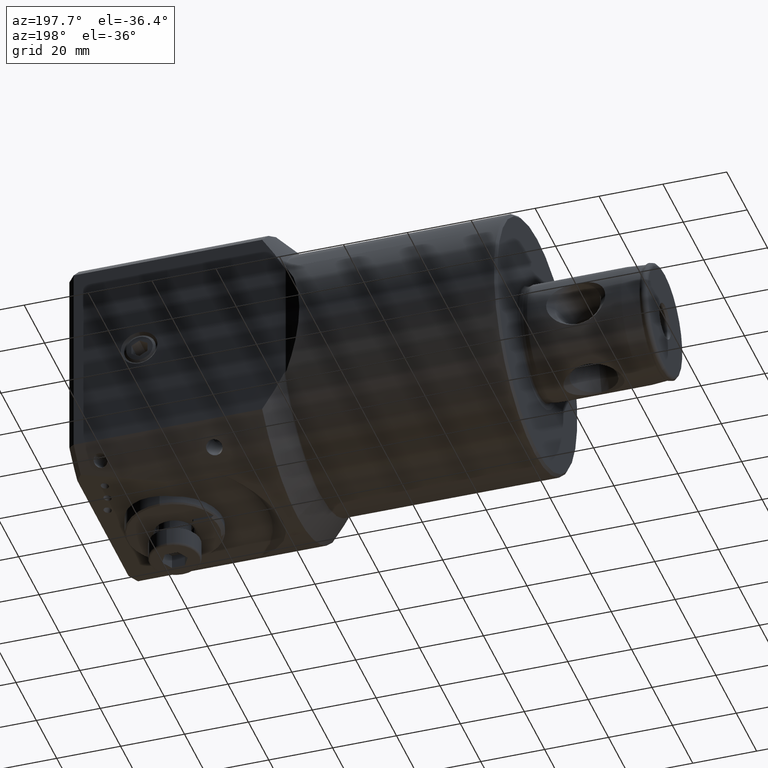
[diagram: clean part render]
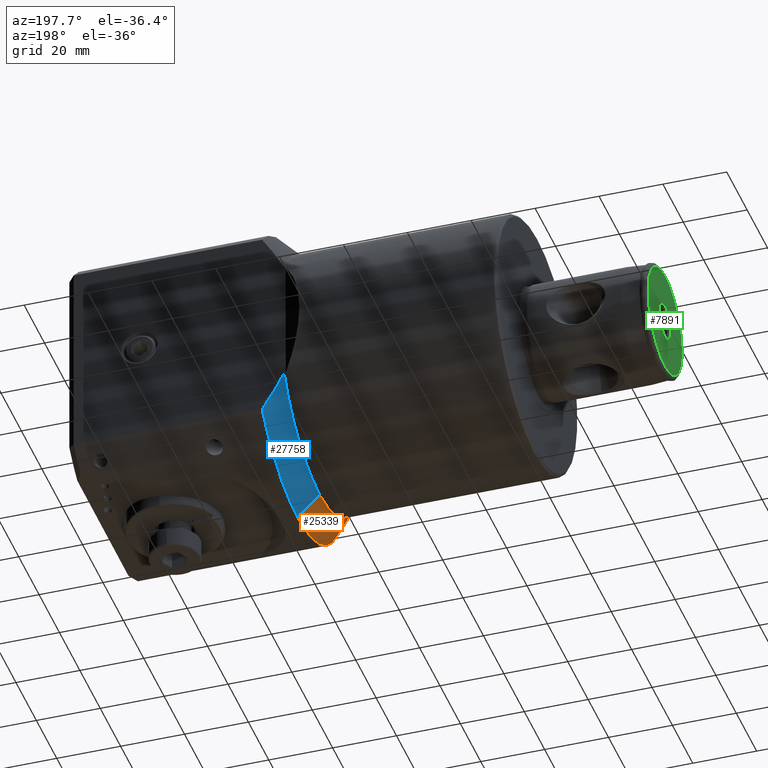
[diagram: same view with three faces highlighted in distinct colors, each labeled with its STEP entity id]
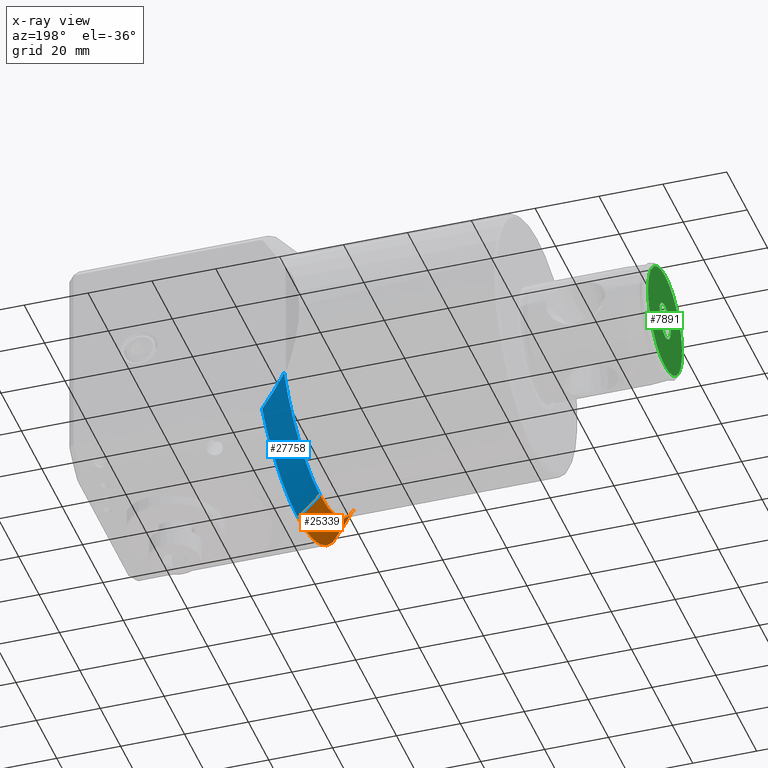
[diagram: x-ray of the same camera — body ghosted, the three highlighted faces saturated]
A machine part, auxiliary view with three faces highlighted in distinct colors.
The next image is the same camera in x-ray (body ghosted, the three faces saturated) — at least one of them is partly hidden behind the body in this view.
Their STEP definitions:

[orange] entity #25339 — the highlighted conical surface has half-angle 45 deg.
#73 = CARTESIAN_POINT ( 'NONE',  ( -67.88284271247461300, -34.00000000000001400, -21.29286990595801400 ) ) ;
#179 = CARTESIAN_POINT ( 'NONE',  ( -61.00000000000000000, -33.99999999999999300, -32.44996147917586900 ) ) ;
#2545 = CARTESIAN_POINT ( 'NONE',  ( -67.88284271247461300, -3.469446951953614200E-014, 0.0000000000000000000 ) ) ;
#2910 = B_SPLINE_CURVE_WITH_KNOTS ( 'NONE', 3,
 ( #23325, #31488, #20221, #34225, #12112, #25575 ),
 .UNSPECIFIED., .F., .F.,
 ( 4, 2, 4 ),
 ( 0.08657966509712980400, 0.09315358088222268400, 0.09972749666731556300 ),
 .UNSPECIFIED. ) ;
#3119 = DIRECTION ( 'NONE',  ( 0.0000000000000000000, 0.0000000000000000000, -1.000000000000000000 ) ) ;
#3781 = EDGE_LOOP ( 'NONE', ( #23312, #13274, #31710, #5219 ) ) ;
#3896 = LINE ( 'NONE', #5679, #15732 ) ;
#5219 = ORIENTED_EDGE ( 'NONE', *, *, #9718, .T. ) ;
#5342 = EDGE_CURVE ( 'NONE', #20432, #18560, #16449, .T. ) ;
#5376 = DIRECTION ( 'NONE',  ( 0.0000000000000000000, 0.0000000000000000000, 1.000000000000000000 ) ) ;
#5679 = CARTESIAN_POINT ( 'NONE',  ( -61.00000000000000000, -3.469446951953614200E-014, -47.00000000000000700 ) ) ;
#5923 = VERTEX_POINT ( 'NONE', #26107 ) ;
#6023 = VERTEX_POINT ( 'NONE', #73 ) ;
#8655 = DIRECTION ( 'NONE',  ( 1.000000000000000000, 0.0000000000000000000, 0.0000000000000000000 ) ) ;
#9057 = AXIS2_PLACEMENT_3D ( 'NONE', #34005, #22996, #23108 ) ;
#9718 = EDGE_CURVE ( 'NONE', #18560, #6023, #2910, .T. ) ;
#12112 = CARTESIAN_POINT ( 'NONE',  ( -66.85235979607995200, -34.00000000000001400, -23.23436700905849200 ) ) ;
#12622 = CIRCLE ( 'NONE', #31091, 40.11715728752538700 ) ;
#13274 = ORIENTED_EDGE ( 'NONE', *, *, #28168, .T. ) ;
#14710 = FACE_OUTER_BOUND ( 'NONE', #3781, .T. ) ;
#15732 = VECTOR ( 'NONE', #29587, 999.9999999999998900 ) ;
#16449 = CIRCLE ( 'NONE', #9057, 47.00000000000000700 ) ;
#18358 = CARTESIAN_POINT ( 'NONE',  ( -61.00000000000000000, 2.465190328815661900E-029, -47.00000000000000700 ) ) ;
#18560 = VERTEX_POINT ( 'NONE', #179 ) ;
#20221 = CARTESIAN_POINT ( 'NONE',  ( -63.44265615506694200, -34.00000000000002100, -28.83520262604908900 ) ) ;
#20432 = VERTEX_POINT ( 'NONE', #18358 ) ;
#21901 = CARTESIAN_POINT ( 'NONE',  ( -61.00000000000000000, -3.469446951953614200E-014, 0.0000000000000000000 ) ) ;
#22996 = DIRECTION ( 'NONE',  ( -1.000000000000000000, -0.0000000000000000000, -0.0000000000000000000 ) ) ;
#23108 = DIRECTION ( 'NONE',  ( 0.0000000000000000000, 0.0000000000000000000, 1.000000000000000000 ) ) ;
#23312 = ORIENTED_EDGE ( 'NONE', *, *, #25208, .F. ) ;
#23325 = CARTESIAN_POINT ( 'NONE',  ( -61.00000000000000000, -33.99999999999999300, -32.44996147917586900 ) ) ;
#25208 = EDGE_CURVE ( 'NONE', #5923, #6023, #12622, .T. ) ;
#25339 = ADVANCED_FACE ( 'NONE', ( #14710 ), #33361, .T. ) ;
#25575 = CARTESIAN_POINT ( 'NONE',  ( -67.88284271247461300, -34.00000000000001400, -21.29286990595801400 ) ) ;
#26107 = CARTESIAN_POINT ( 'NONE',  ( -67.88284271247461300, -3.469446951953614200E-014, -40.11715728752538700 ) ) ;
#26987 = DIRECTION ( 'NONE',  ( -1.000000000000000000, -0.0000000000000000000, -0.0000000000000000000 ) ) ;
#28168 = EDGE_CURVE ( 'NONE', #5923, #20432, #3896, .T. ) ;
#29587 = DIRECTION ( 'NONE',  ( 0.7071067811865468000, 0.0000000000000000000, -0.7071067811865483500 ) ) ;
#31091 = AXIS2_PLACEMENT_3D ( 'NONE', #2545, #26987, #5376 ) ;
#31488 = CARTESIAN_POINT ( 'NONE',  ( -62.23919189052482900, -34.00000000000001400, -30.65513596321831000 ) ) ;
#31561 = AXIS2_PLACEMENT_3D ( 'NONE', #21901, #8655, #3119 ) ;
#31710 = ORIENTED_EDGE ( 'NONE', *, *, #5342, .T. ) ;
#33361 = CONICAL_SURFACE ( 'NONE', #31561, 47.00000000000000700, 0.7853981633974492800 ) ;
#34005 = CARTESIAN_POINT ( 'NONE',  ( -61.00000000000000000, -3.469446951953614200E-014, 0.0000000000000000000 ) ) ;
#34225 = CARTESIAN_POINT ( 'NONE',  ( -65.74909191599658700, -34.00000000000000700, -25.12471400618554200 ) ) ;

[blue] entity #27758 — the highlighted conical surface has half-angle 45 deg.
#290 = CARTESIAN_POINT ( 'NONE',  ( -61.00000000000000000, -3.469446951953614200E-014, 0.0000000000000000000 ) ) ;
#792 = AXIS2_PLACEMENT_3D ( 'NONE', #290, #21597, #24773 ) ;
#1356 = CARTESIAN_POINT ( 'NONE',  ( -61.00000000000000000, -3.469446951953614200E-014, 0.0000000000000000000 ) ) ;
#1424 = AXIS2_PLACEMENT_3D ( 'NONE', #19936, #19700, #25282 ) ;
#1968 = EDGE_CURVE ( 'NONE', #26296, #20432, #21701, .T. ) ;
#2223 = FACE_OUTER_BOUND ( 'NONE', #32283, .T. ) ;
#3240 = CARTESIAN_POINT ( 'NONE',  ( -61.63042682887995500, 35.00000000000000000, -30.42420243906337500 ) ) ;
#3896 = LINE ( 'NONE', #5679, #15732 ) ;
#4251 = ORIENTED_EDGE ( 'NONE', *, *, #1968, .T. ) ;
#5285 = ORIENTED_EDGE ( 'NONE', *, *, #34837, .F. ) ;
#5679 = CARTESIAN_POINT ( 'NONE',  ( -61.00000000000000000, -3.469446951953614200E-014, -47.00000000000000700 ) ) ;
#5923 = VERTEX_POINT ( 'NONE', #26107 ) ;
#10035 = EDGE_CURVE ( 'NONE', #28991, #26296, #14016, .T. ) ;
#13766 = CARTESIAN_POINT ( 'NONE',  ( -61.00000000000000000, 35.00000000000000000, -31.36877428271621300 ) ) ;
#13769 = CIRCLE ( 'NONE', #1424, 40.11715728752538700 ) ;
#13884 = CARTESIAN_POINT ( 'NONE',  ( -67.88284271247461300, 35.00000000000000000, -19.60577233449497900 ) ) ;
#14016 = B_SPLINE_CURVE_WITH_KNOTS ( 'NONE', 3,
 ( #13884, #30194, #22270, #19068, #32914, #21792, #3240, #13766 ),
 .UNSPECIFIED., .F., .F.,
 ( 4, 2, 2, 4 ),
 ( 0.1412856817602788100, 0.1480492998065413000, 0.1514311088296725300, 0.1548129178528037900 ),
 .UNSPECIFIED. ) ;
#14905 = CONICAL_SURFACE ( 'NONE', #792, 47.00000000000000700, 0.7853981633974492800 ) ;
#15732 = VECTOR ( 'NONE', #29587, 999.9999999999998900 ) ;
#15822 = CARTESIAN_POINT ( 'NONE',  ( -61.00000000000000000, 35.00000000000000000, -31.36877428271621300 ) ) ;
#17424 = CARTESIAN_POINT ( 'NONE',  ( -67.88284271247461300, 35.00000000000000000, -19.60577233449497900 ) ) ;
#18358 = CARTESIAN_POINT ( 'NONE',  ( -61.00000000000000000, 2.465190328815661900E-029, -47.00000000000000700 ) ) ;
#19068 = CARTESIAN_POINT ( 'NONE',  ( -64.06347632001011000, 35.00000000000000700, -26.57148401151384900 ) ) ;
#19700 = DIRECTION ( 'NONE',  ( -1.000000000000000000, -0.0000000000000000000, -0.0000000000000000000 ) ) ;
#19936 = CARTESIAN_POINT ( 'NONE',  ( -67.88284271247461300, -3.469446951953614200E-014, 0.0000000000000000000 ) ) ;
#20230 = DIRECTION ( 'NONE',  ( -1.000000000000000000, -0.0000000000000000000, -0.0000000000000000000 ) ) ;
#20432 = VERTEX_POINT ( 'NONE', #18358 ) ;
#21597 = DIRECTION ( 'NONE',  ( 1.000000000000000000, 0.0000000000000000000, 0.0000000000000000000 ) ) ;
#21701 = CIRCLE ( 'NONE', #25533, 47.00000000000000700 ) ;
#21792 = CARTESIAN_POINT ( 'NONE',  ( -62.25079289778310000, 35.00000000000000700, -29.47113395626982100 ) ) ;
#22270 = CARTESIAN_POINT ( 'NONE',  ( -65.79854406642870400, 35.00000000000000000, -23.63187425661498500 ) ) ;
#24773 = DIRECTION ( 'NONE',  ( 0.0000000000000000000, 0.0000000000000000000, -1.000000000000000000 ) ) ;
#25282 = DIRECTION ( 'NONE',  ( 0.0000000000000000000, 0.0000000000000000000, 1.000000000000000000 ) ) ;
#25533 = AXIS2_PLACEMENT_3D ( 'NONE', #1356, #20230, #34726 ) ;
#26107 = CARTESIAN_POINT ( 'NONE',  ( -67.88284271247461300, -3.469446951953614200E-014, -40.11715728752538700 ) ) ;
#26296 = VERTEX_POINT ( 'NONE', #15822 ) ;
#27758 = ADVANCED_FACE ( 'NONE', ( #2223 ), #14905, .T. ) ;
#28168 = EDGE_CURVE ( 'NONE', #5923, #20432, #3896, .T. ) ;
#28991 = VERTEX_POINT ( 'NONE', #17424 ) ;
#29587 = DIRECTION ( 'NONE',  ( 0.7071067811865468000, 0.0000000000000000000, -0.7071067811865483500 ) ) ;
#30194 = CARTESIAN_POINT ( 'NONE',  ( -66.88822832876665800, 35.00000000000000700, -21.64094345608573300 ) ) ;
#31094 = ORIENTED_EDGE ( 'NONE', *, *, #10035, .T. ) ;
#32283 = EDGE_LOOP ( 'NONE', ( #32862, #5285, #31094, #4251 ) ) ;
#32862 = ORIENTED_EDGE ( 'NONE', *, *, #28168, .F. ) ;
#32914 = CARTESIAN_POINT ( 'NONE',  ( -63.46742960430975000, 35.00000000000000000, -27.54464761498997700 ) ) ;
#34726 = DIRECTION ( 'NONE',  ( 0.0000000000000000000, 0.0000000000000000000, 1.000000000000000000 ) ) ;
#34837 = EDGE_CURVE ( 'NONE', #28991, #5923, #13769, .T. ) ;

[green] entity #7891 — the highlighted planar face has unit normal (1, 0, 0).
#395 = EDGE_LOOP ( 'NONE', ( #27008, #26328 ) ) ;
#409 = AXIS2_PLACEMENT_3D ( 'NONE', #12631, #15590, #29063 ) ;
#541 = ORIENTED_EDGE ( 'NONE', *, *, #3259, .F. ) ;
#1724 = CIRCLE ( 'NONE', #19010, 5.600000000000000500 ) ;
#3079 = EDGE_CURVE ( 'NONE', #24301, #13408, #30523, .T. ) ;
#3259 = EDGE_CURVE ( 'NONE', #13544, #7228, #1724, .T. ) ;
#3436 = CARTESIAN_POINT ( 'NONE',  ( -176.0000000000000300, -3.469446951953614200E-014, 0.0000000000000000000 ) ) ;
#4278 = CIRCLE ( 'NONE', #27834, 16.69000000000000100 ) ;
#4313 = FACE_OUTER_BOUND ( 'NONE', #395, .T. ) ;
#5027 = CARTESIAN_POINT ( 'NONE',  ( -176.0000000000000000, -3.400866731201362100E-014, -5.600000000000000500 ) ) ;
#7228 = VERTEX_POINT ( 'NONE', #5027 ) ;
#7765 = CARTESIAN_POINT ( 'NONE',  ( -176.0000000000000000, -3.469446951953614200E-014, 0.0000000000000000000 ) ) ;
#7891 = ADVANCED_FACE ( 'NONE', ( #14470, #4313 ), #11002, .F. ) ;
#8605 = DIRECTION ( 'NONE',  ( 0.0000000000000000000, 0.0000000000000000000, 1.000000000000000000 ) ) ;
#9786 = AXIS2_PLACEMENT_3D ( 'NONE', #21524, #29474, #18556 ) ;
#11002 = PLANE ( 'NONE',  #9786 ) ;
#12631 = CARTESIAN_POINT ( 'NONE',  ( -176.0000000000000300, -3.469446951953614200E-014, 0.0000000000000000000 ) ) ;
#13179 = DIRECTION ( 'NONE',  ( -1.000000000000000000, -0.0000000000000000000, -0.0000000000000000000 ) ) ;
#13408 = VERTEX_POINT ( 'NONE', #29286 ) ;
#13435 = ORIENTED_EDGE ( 'NONE', *, *, #23481, .F. ) ;
#13544 = VERTEX_POINT ( 'NONE', #27591 ) ;
#14077 = CARTESIAN_POINT ( 'NONE',  ( -176.0000000000000300, -3.258159662124209400E-014, -16.69000000000000100 ) ) ;
#14470 = FACE_BOUND ( 'NONE', #33455, .T. ) ;
#15590 = DIRECTION ( 'NONE',  ( -1.000000000000000000, -0.0000000000000000000, -0.0000000000000000000 ) ) ;
#17463 = AXIS2_PLACEMENT_3D ( 'NONE', #31138, #22982, #31257 ) ;
#18556 = DIRECTION ( 'NONE',  ( 0.0000000000000000000, 0.0000000000000000000, -1.000000000000000000 ) ) ;
#19010 = AXIS2_PLACEMENT_3D ( 'NONE', #7765, #13179, #32092 ) ;
#19454 = DIRECTION ( 'NONE',  ( -1.000000000000000000, -0.0000000000000000000, -0.0000000000000000000 ) ) ;
#21524 = CARTESIAN_POINT ( 'NONE',  ( -176.0000000000000000, 5.599999999999965900, 0.0000000000000000000 ) ) ;
#22982 = DIRECTION ( 'NONE',  ( -1.000000000000000000, -0.0000000000000000000, -0.0000000000000000000 ) ) ;
#23481 = EDGE_CURVE ( 'NONE', #7228, #13544, #27101, .T. ) ;
#24301 = VERTEX_POINT ( 'NONE', #14077 ) ;
#26328 = ORIENTED_EDGE ( 'NONE', *, *, #3079, .T. ) ;
#27008 = ORIENTED_EDGE ( 'NONE', *, *, #29979, .T. ) ;
#27101 = CIRCLE ( 'NONE', #17463, 5.600000000000000500 ) ;
#27591 = CARTESIAN_POINT ( 'NONE',  ( -176.0000000000000000, -3.469446951953614200E-014, 5.600000000000000500 ) ) ;
#27834 = AXIS2_PLACEMENT_3D ( 'NONE', #3436, #19454, #8605 ) ;
#29063 = DIRECTION ( 'NONE',  ( 0.0000000000000000000, 0.0000000000000000000, 1.000000000000000000 ) ) ;
#29286 = CARTESIAN_POINT ( 'NONE',  ( -176.0000000000000300, -3.469446951953614200E-014, 16.69000000000000100 ) ) ;
#29474 = DIRECTION ( 'NONE',  ( 1.000000000000000000, 0.0000000000000000000, 0.0000000000000000000 ) ) ;
#29979 = EDGE_CURVE ( 'NONE', #13408, #24301, #4278, .T. ) ;
#30523 = CIRCLE ( 'NONE', #409, 16.69000000000000100 ) ;
#31138 = CARTESIAN_POINT ( 'NONE',  ( -176.0000000000000000, -3.469446951953614200E-014, 0.0000000000000000000 ) ) ;
#31257 = DIRECTION ( 'NONE',  ( 0.0000000000000000000, 0.0000000000000000000, 1.000000000000000000 ) ) ;
#32092 = DIRECTION ( 'NONE',  ( 0.0000000000000000000, 0.0000000000000000000, 1.000000000000000000 ) ) ;
#33455 = EDGE_LOOP ( 'NONE', ( #541, #13435 ) ) ;